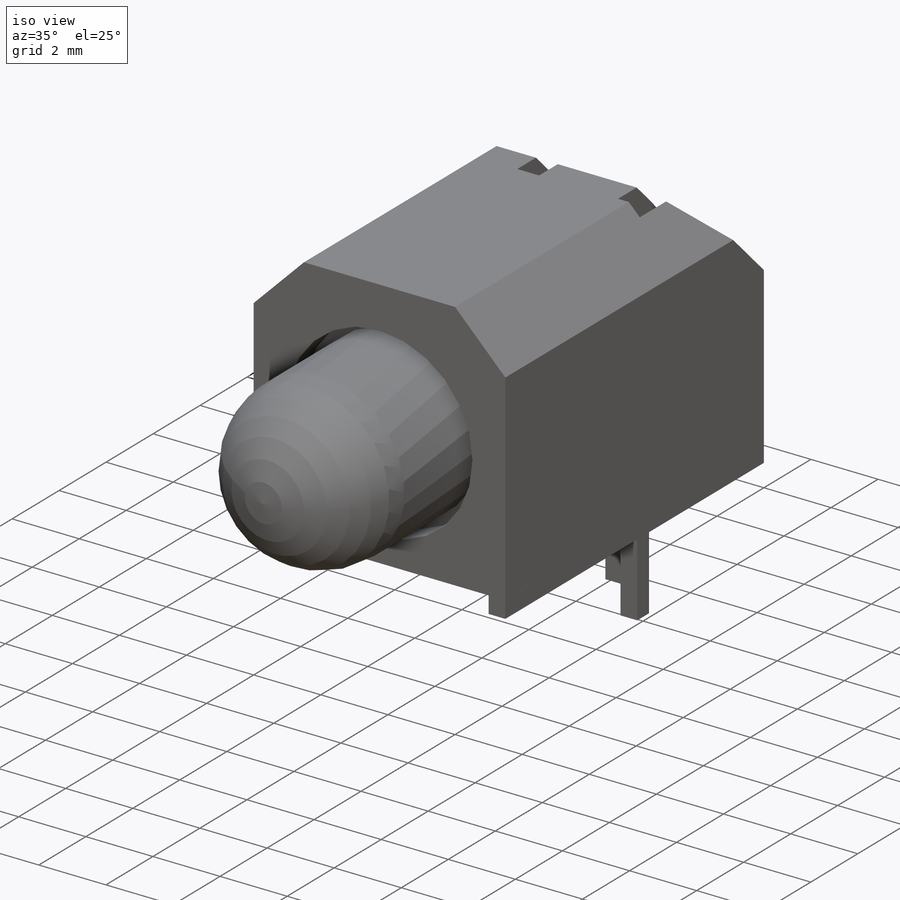
[diagram: iso view]
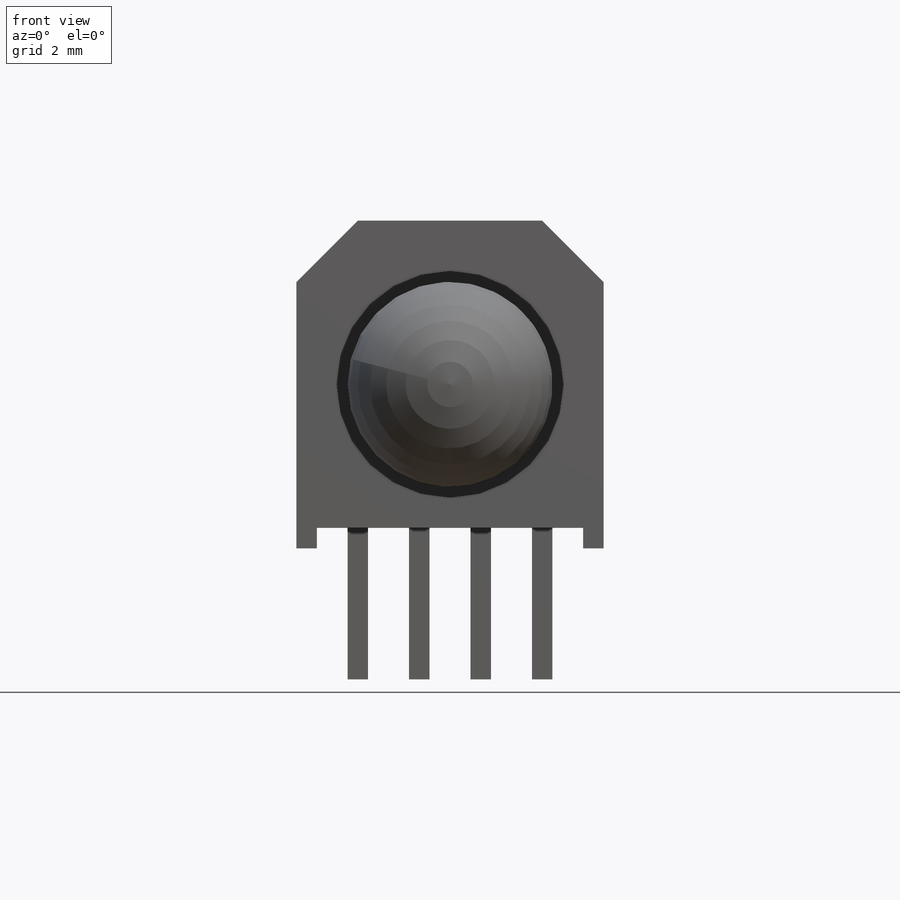
[diagram: front view]
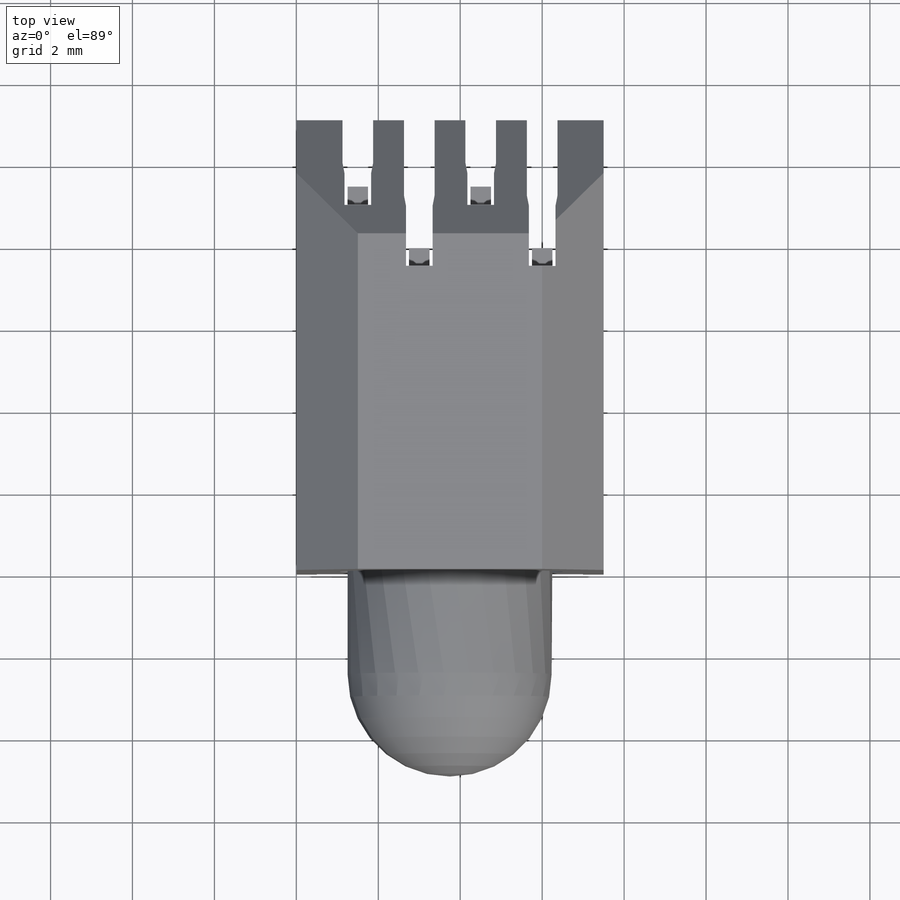
[diagram: top view]
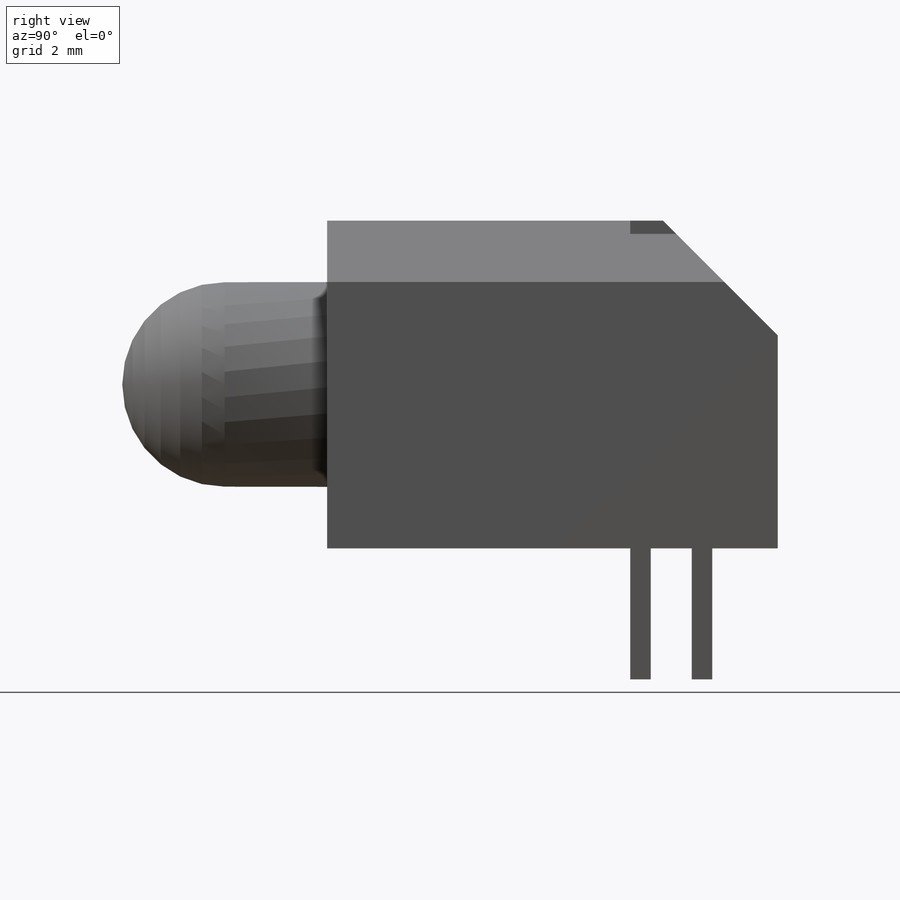
[diagram: right view]
SOLIDWORKS PART (.sldprt)
format: sldprt  version: not decoded by parser v0  size: 777,728 bytes
history: native  units: mm
features: sketch x8, cut_extrude x4, extrude x2, material x1, plane x1, revolve x1, cut_revolve x1 (+13 scaffold rows collapsed)
feature tree (31):
  scaffold x13  (default folders/planes/origin — collapsed)
  material  "Material <not specified>"
  sketch  "Sketch1"  dims[c1.D1=8.0mm c1.D2=7.5mm c1.D3=4.5mm c1.D4=~1.840226mm c2.D4=45.0deg c2.D5=0.5mm c2.D6=0.5mm c2.D7=0.5mm c2.D8=6.5mm]
  extrude  "Extrude1"  Depth=11mm
  plane  "Plane1"  Offset=4mm
  sketch  "Sketch3"  dims[c1.D5=2.5mm c1.D2=5.0mm c1.D1=5.0mm c2.D2=2.5mm c2.D3=0.2mm c2.D4=1.0mm]
  revolve  "Revolve1"  Angle=360deg
  sketch  "Sketch5"  dims[c1.D1=0.5mm c1.D2=1.5mm c1.D3=0.5mm c1.D4=3.5mm c1.D5=0.5mm c1.D6=0.5mm c1.D7=2.54mm c1.D8=2.54mm c2.D1=0.5mm c2.D2=0.5mm c2.D3=~0.649116mm c2.D4=9.15mm c2.D5=~0.746831mm c2.D6=~0.255225mm c2.D7=~0.783821mm c2.D8=~0.783821mm c3.D8=~169.163076deg c4.D8=0.5mm c4.D9=0.5mm c4.D10=~0.649116mm c4.D11=~0.255225mm c4.D12=7.65mm c4.D13=~0.048857mm c4.D14=~0.746831mm c4.D15=1.5mm c4.D16=1.5mm c4.D17=1.5mm c4.D18=1.5mm c4.D4=1.5mm]
  cut_extrude  "Cut-Extrude1"  [1 undecoded]
  extrude  "Extrude2"  [1 undecoded]
  sketch  "Sketch5<9>"  dims[D1=3.2mm]
  sketch  "Sketch6"  dims[D1=3.0mm]
  sketch  "Sketch7"  dims[c1.D1=3.475mm c2.D1=45.0deg]
  cut_extrude  "Cut-Extrude3"  [1 undecoded]
  cut_revolve  "Cut-Revolve1"  [1 undecoded]
  sketch  "Sketch3<5>"  dims[D1=360.0deg]
  cut_extrude  "Cut-Extrude4"  Depth=0.001mm
  sketch  "Sketch9"
  cut_extrude  "Cut-Extrude5"  Depth=4mm
decode coverage: 11 of 16 modeling features carry decoded parameters
note: ~ marks probable driven/reference dimensions
note: 4 parameter values undecoded
summary: no parameter record found for 4 features
note: suppression state not decoded; provenance and decode notes live in map.json
